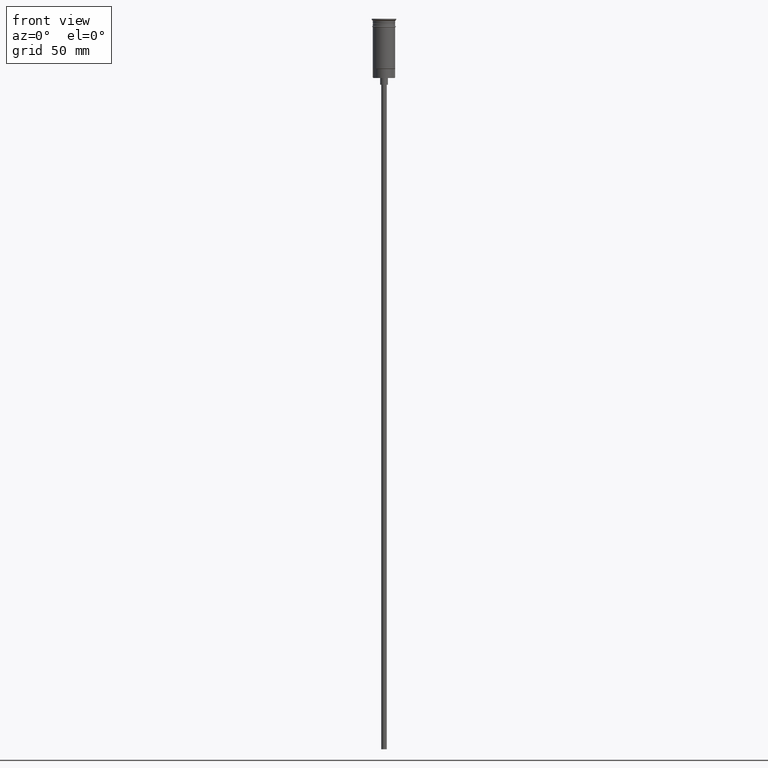
[diagram: clean part render]
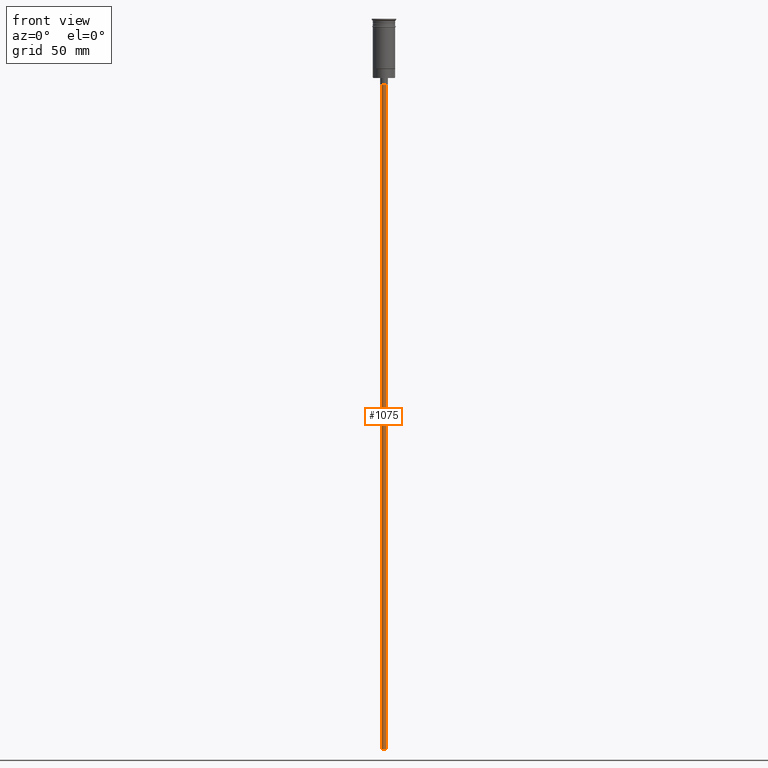
[diagram: same view with one face highlighted and labeled with its STEP entity id]
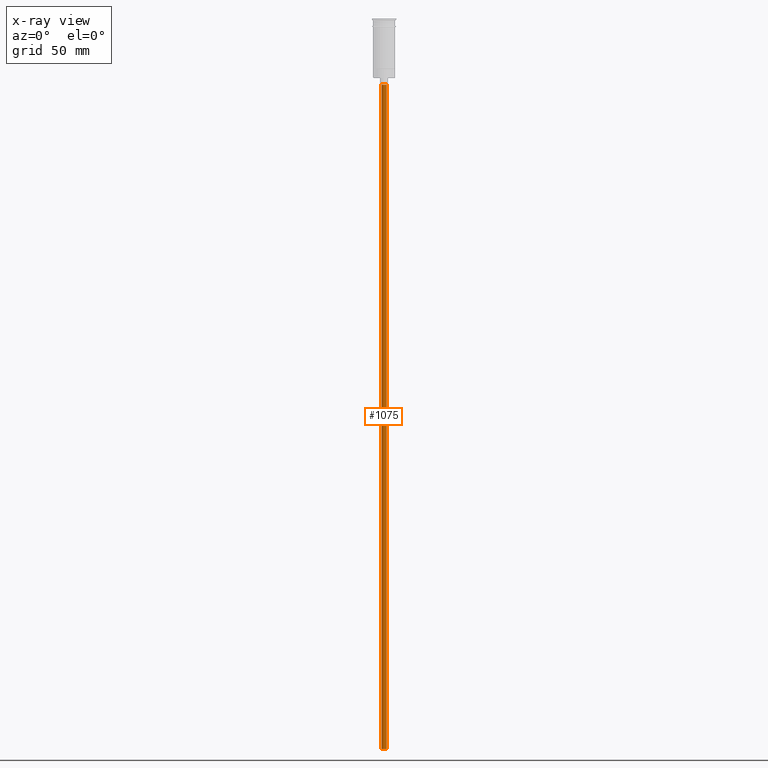
[diagram: x-ray of the same camera — body ghosted, the highlighted face saturated]
A machine part, front view. The second image highlights one B-rep face of the part: STEP entity #1075.
The next image is the same camera in x-ray: the body ghosted, the highlighted face saturated — about 0% of this face is hidden behind the body in this view.
In plain terms, the highlighted cylindrical surface (edge-blend (fillet) strip) has radius 1.25 mm, axis along (-0, -0, 1).
Its self-contained STEP definition (entity closure, byte-faithful):
#28 = CARTESIAN_POINT ( 'NONE',  ( 1.250000000000000000, 0.000000000000000000, -29.50000000000000000 ) ) ;
#39 = DIRECTION ( 'NONE',  ( -0.000000000000000000, -0.000000000000000000, 1.000000000000000000 ) ) ;
#97 = DIRECTION ( 'NONE',  ( -0.000000000000000000, -0.000000000000000000, 1.000000000000000000 ) ) ;
#135 = EDGE_CURVE ( 'NONE', #920, #1280, #141, .T. ) ;
#141 = CIRCLE ( 'NONE', #1570, 1.250000000000000000 ) ;
#190 = DIRECTION ( 'NONE',  ( 0.000000000000000000, 0.000000000000000000, -1.000000000000000000 ) ) ;
#191 = CARTESIAN_POINT ( 'NONE',  ( -1.250000000000000000, 1.530808498934191571E-16, -326.5000000000000000 ) ) ;
#201 = ORIENTED_EDGE ( 'NONE', *, *, #434, .T. ) ;
#346 = VERTEX_POINT ( 'NONE', #1336 ) ;
#359 = EDGE_CURVE ( 'NONE', #596, #346, #753, .T. ) ;
#367 = CARTESIAN_POINT ( 'NONE',  ( 0.000000000000000000, 0.000000000000000000, -326.5000000000000000 ) ) ;
#434 = EDGE_CURVE ( 'NONE', #596, #920, #712, .T. ) ;
#439 = EDGE_LOOP ( 'NONE', ( #620, #1405, #201, #1143 ) ) ;
#475 = CYLINDRICAL_SURFACE ( 'NONE', #1004, 1.250000000000000000 ) ;
#562 = DIRECTION ( 'NONE',  ( 1.000000000000000000, 0.000000000000000000, 0.000000000000000000 ) ) ;
#591 = FACE_OUTER_BOUND ( 'NONE', #439, .T. ) ;
#596 = VERTEX_POINT ( 'NONE', #1260 ) ;
#598 = VECTOR ( 'NONE', #39, 1000.000000000000000 ) ;
#617 = CARTESIAN_POINT ( 'NONE',  ( 1.250000000000000000, 0.000000000000000000, -326.5000000000000000 ) ) ;
#620 = ORIENTED_EDGE ( 'NONE', *, *, #744, .F. ) ;
#684 = CARTESIAN_POINT ( 'NONE',  ( -1.250000000000000000, 1.530808498934191571E-16, -29.50000000000000000 ) ) ;
#696 = DIRECTION ( 'NONE',  ( -1.000000000000000000, 0.000000000000000000, 0.000000000000000000 ) ) ;
#712 = LINE ( 'NONE', #617, #1187 ) ;
#744 = EDGE_CURVE ( 'NONE', #346, #1280, #921, .T. ) ;
#753 = CIRCLE ( 'NONE', #1215, 1.250000000000000000 ) ;
#804 = CARTESIAN_POINT ( 'NONE',  ( 0.000000000000000000, 0.000000000000000000, -29.50000000000000000 ) ) ;
#826 = DIRECTION ( 'NONE',  ( -1.000000000000000000, 0.000000000000000000, 0.000000000000000000 ) ) ;
#920 = VERTEX_POINT ( 'NONE', #28 ) ;
#921 = LINE ( 'NONE', #191, #598 ) ;
#961 = DIRECTION ( 'NONE',  ( -0.000000000000000000, -0.000000000000000000, 1.000000000000000000 ) ) ;
#1004 = AXIS2_PLACEMENT_3D ( 'NONE', #1059, #961, #562 ) ;
#1059 = CARTESIAN_POINT ( 'NONE',  ( 0.000000000000000000, 0.000000000000000000, -326.5000000000000000 ) ) ;
#1075 = ADVANCED_FACE ( 'NONE', ( #591 ), #475, .T. ) ;
#1143 = ORIENTED_EDGE ( 'NONE', *, *, #135, .T. ) ;
#1187 = VECTOR ( 'NONE', #97, 1000.000000000000000 ) ;
#1215 = AXIS2_PLACEMENT_3D ( 'NONE', #367, #190, #696 ) ;
#1260 = CARTESIAN_POINT ( 'NONE',  ( 1.250000000000000000, 0.000000000000000000, -326.5000000000000000 ) ) ;
#1280 = VERTEX_POINT ( 'NONE', #684 ) ;
#1289 = DIRECTION ( 'NONE',  ( 0.000000000000000000, 0.000000000000000000, -1.000000000000000000 ) ) ;
#1336 = CARTESIAN_POINT ( 'NONE',  ( -1.250000000000000000, 1.530808498934191571E-16, -326.5000000000000000 ) ) ;
#1405 = ORIENTED_EDGE ( 'NONE', *, *, #359, .F. ) ;
#1570 = AXIS2_PLACEMENT_3D ( 'NONE', #804, #1289, #826 ) ;